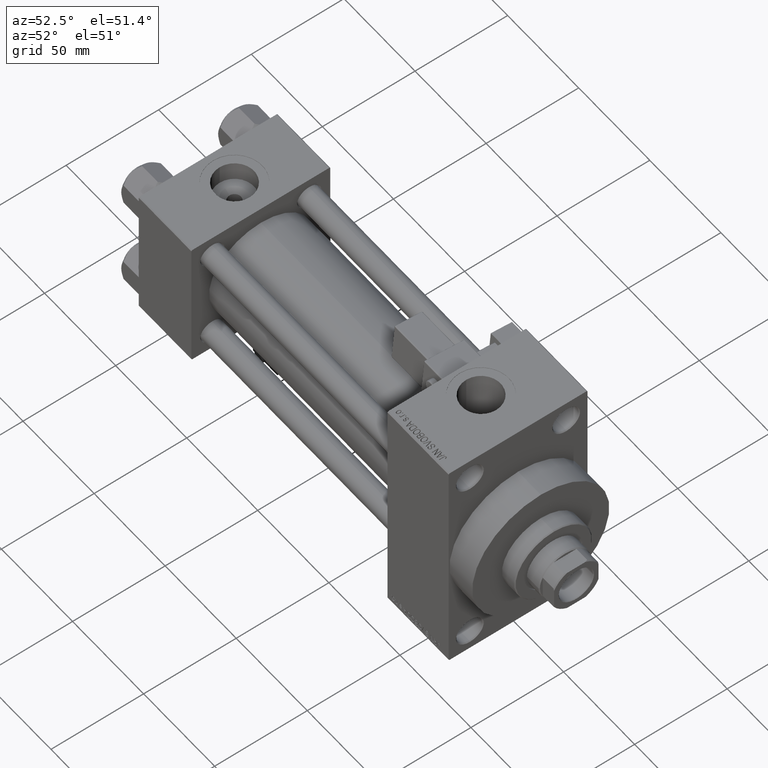
[diagram: clean part render]
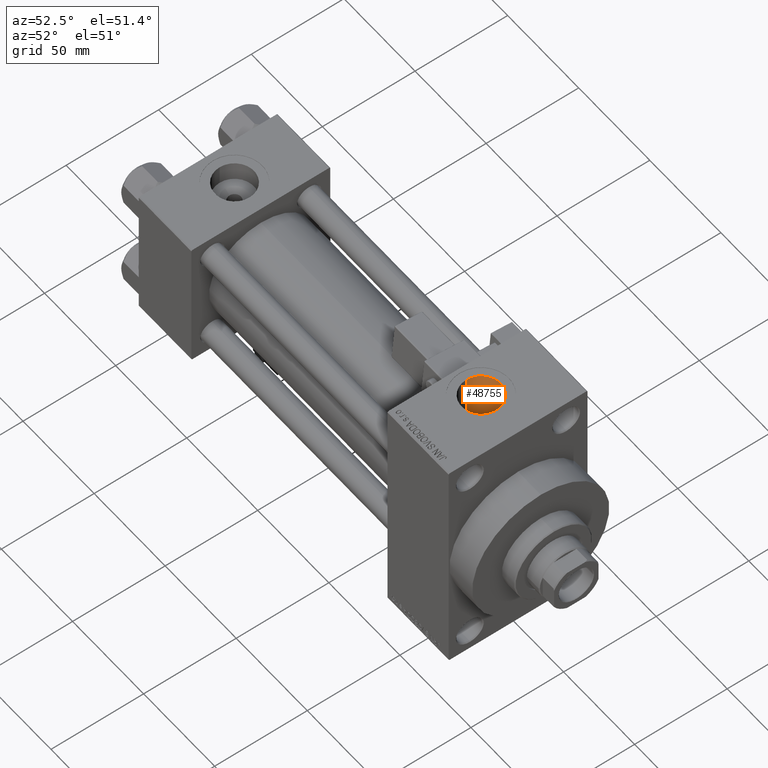
[diagram: same view with one face highlighted and labeled with its STEP entity id]
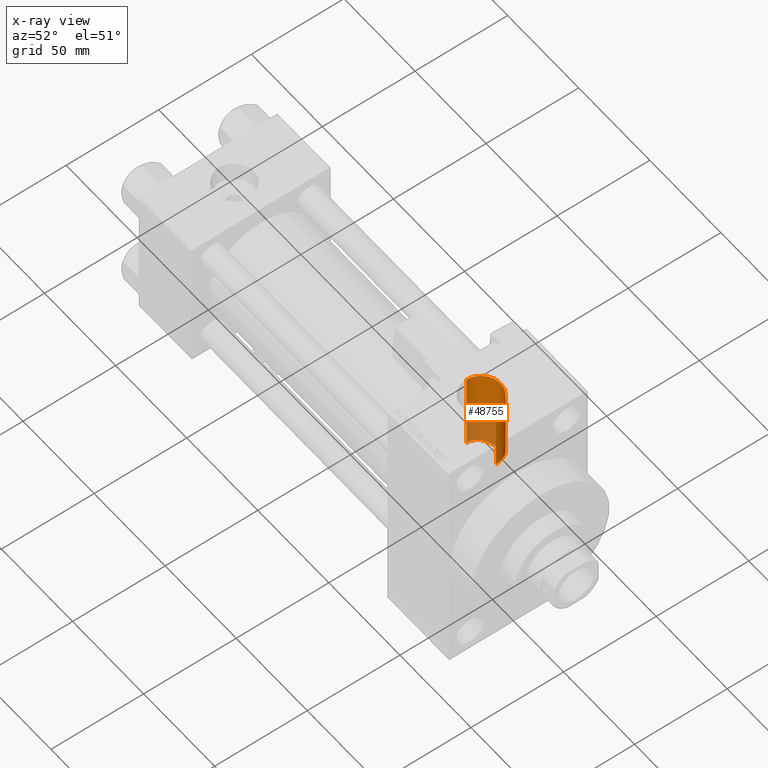
[diagram: x-ray of the same camera — body ghosted, the highlighted face saturated]
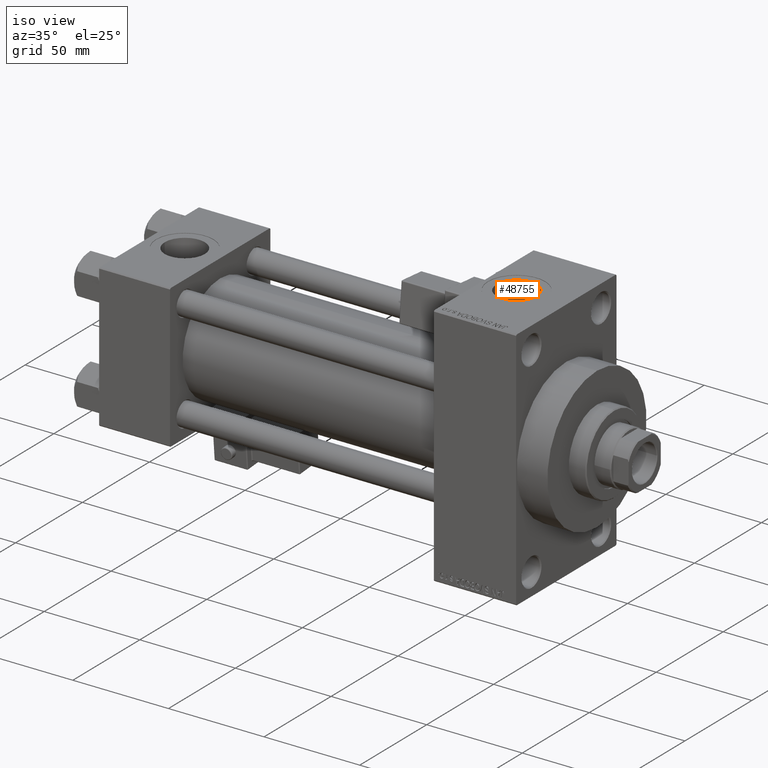
[diagram: same view with one face highlighted and labeled with its STEP entity id]
A machine part, auxiliary view. The second image highlights one B-rep face of the part: STEP entity #48755.
The next image is the same camera in x-ray: the body ghosted, the highlighted face saturated — about 27% of this face is hidden behind the body in this view.
A second angle (iso view) of the same face is appended — the face is thin or edge-on in the first view.
In plain terms, the highlighted cylindrical surface (edge-blend (fillet) strip) has radius 10.48 mm, axis along (0, 0, -1).
Its self-contained STEP definition (entity closure, byte-faithful):
#892 = CARTESIAN_POINT ( 'NONE',  ( 202.3797757294332200, 1.493268271475381104, 26.46049876817950164 ) ) ;
#1741 = CARTESIAN_POINT ( 'NONE',  ( 190.7400000000000375, 10.40398000767011943, 24.37226292324946542 ) ) ;
#1978 = VECTOR ( 'NONE', #6518, 1000.000000000000000 ) ;
#2234 = CARTESIAN_POINT ( 'NONE',  ( 191.4867779838282331, 10.49442042171645717, 24.33365591073747325 ) ) ;
#2297 = VERTEX_POINT ( 'NONE', #5023 ) ;
#2482 = CARTESIAN_POINT ( 'NONE',  ( 197.8214836787066702, 8.745726648652278001, 25.01826792439340963 ) ) ;
#2673 = B_SPLINE_CURVE_WITH_KNOTS ( 'NONE', 3,
 ( #48115, #25891, #40642, #22131, #41129, #37147, #37634, #10389, #10631, #18397, #18637, #3384, #33882, #48862, #44867, #14393, #6401, #14632, #21395, #48364, #40885, #22380, #41380, #14145, #2896, #29890 ),
 .UNSPECIFIED., .F., .F.,
 ( 4, 2, 2, 2, 2, 2, 2, 2, 2, 2, 2, 2, 4 ),
 ( 0.03336594956818868252, 0.03529115265112764410, 0.03721635573406661263, 0.03817895727553609342, 0.03914155881700557421, 0.04010416035847505500, 0.04106676189994454274, 0.04299196498288355983, 0.04395456652435306838, 0.04491716806582257693, 0.04684237114876160096, 0.04780497269023110951, 0.04876757423170062500 ),
 .UNSPECIFIED. ) ;
#2844 = CARTESIAN_POINT ( 'NONE',  ( 202.4799999999999898, -1.055894908382857656E-14, 63.79999999999996874 ) ) ;
#2896 = CARTESIAN_POINT ( 'NONE',  ( 190.4203714346558343, 10.36527059146238727, 17.68652548756301002 ) ) ;
#3333 = B_SPLINE_CURVE_WITH_KNOTS ( 'NONE', 3,
 ( #1741, #2234, #17238, #47705, #32739, #13984, #47956, #28988, #21490, #2482, #25493, #44469, #17740, #29242, #18978, #14971, #4644, #48949, #41219, #35148, #892, #16144, #26489, #49196 ),
 .UNSPECIFIED., .F., .F.,
 ( 4, 2, 2, 2, 2, 2, 2, 2, 2, 2, 2, 4 ),
 ( 0.000000000000000000, 0.002226462588988848811, 0.003339693883483232234, 0.004452925177977616090, 0.006679387766966461866, 0.008905850355955308509, 0.01113231294494415428, 0.01335877553393299833, 0.01447200682842742468, 0.01558523812292184930, 0.01669846941741627219, 0.01781170071191069335 ),
 .UNSPECIFIED. ) ;
#3384 = CARTESIAN_POINT ( 'NONE',  ( 183.7748447540610073, 6.501949221870913398, 19.44336272688398282 ) ) ;
#4644 = CARTESIAN_POINT ( 'NONE',  ( 201.8350634734961204, 3.638478613961682484, 26.25141056013275076 ) ) ;
#5023 = CARTESIAN_POINT ( 'NONE',  ( 190.7400000000000375, 10.40398000767011943, 24.37226292324946542 ) ) ;
#5787 = CARTESIAN_POINT ( 'NONE',  ( 202.4800000000001603, 1.369086091260426415E-14, 26.50000000000006750 ) ) ;
#6212 = EDGE_CURVE ( 'NONE', #2297, #9857, #12114, .T. ) ;
#6401 = CARTESIAN_POINT ( 'NONE',  ( 186.0406083823525307, 8.626389767625555649, 18.59760954222975471 ) ) ;
#6518 = DIRECTION ( 'NONE',  ( 0.000000000000000000, 0.000000000000000000, -1.000000000000000000 ) ) ;
#7703 = VERTEX_POINT ( 'NONE', #5787 ) ;
#8890 = ORIENTED_EDGE ( 'NONE', *, *, #27920, .T. ) ;
#9039 = VERTEX_POINT ( 'NONE', #9551 ) ;
#9551 = CARTESIAN_POINT ( 'NONE',  ( 181.5200000000000102, 2.510525899703770247E-15, 20.50000000000000000 ) ) ;
#9857 = VERTEX_POINT ( 'NONE', #32439 ) ;
#10264 = LINE ( 'NONE', #26519, #1978 ) ;
#10389 = CARTESIAN_POINT ( 'NONE',  ( 182.7465031261293120, 4.929846979882107405, 19.90053945554343784 ) ) ;
#10631 = CARTESIAN_POINT ( 'NONE',  ( 182.8986382944032130, 5.205176082402793725, 19.83010537438763521 ) ) ;
#12114 = LINE ( 'NONE', #47319, #24522 ) ;
#12397 = LINE ( 'NONE', #23900, #35970 ) ;
#12655 = DIRECTION ( 'NONE',  ( 0.000000000000000000, 0.000000000000000000, -1.000000000000000000 ) ) ;
#13093 = DIRECTION ( 'NONE',  ( 0.000000000000000000, 0.000000000000000000, -1.000000000000000000 ) ) ;
#13347 = DIRECTION ( 'NONE',  ( 1.000000000000000000, 0.000000000000000000, 0.000000000000000000 ) ) ;
#13984 = CARTESIAN_POINT ( 'NONE',  ( 194.4441749543285596, 10.19789382658398047, 24.45934298840090548 ) ) ;
#14145 = CARTESIAN_POINT ( 'NONE',  ( 190.0991158311732931, 10.31120164165119490, 17.71821964665047844 ) ) ;
#14393 = CARTESIAN_POINT ( 'NONE',  ( 185.7867860278861940, 8.445286684367406593, 18.68076181990202755 ) ) ;
#14632 = CARTESIAN_POINT ( 'NONE',  ( 186.5676313420410395, 8.967626198694221173, 18.43549189657610654 ) ) ;
#14971 = CARTESIAN_POINT ( 'NONE',  ( 201.6992295974814908, 3.986558870987725101, 26.20065640115692673 ) ) ;
#16144 = CARTESIAN_POINT ( 'NONE',  ( 202.4596852673074636, 0.7513843442591019439, 26.49194720587043506 ) ) ;
#17238 = CARTESIAN_POINT ( 'NONE',  ( 192.2299651273087875, 10.50378173186090969, 24.32953270370887822 ) ) ;
#17740 = CARTESIAN_POINT ( 'NONE',  ( 200.0047687462550812, 6.803400717438798928, 25.61891449644601337 ) ) ;
#18397 = CARTESIAN_POINT ( 'NONE',  ( 183.2259820339099292, 5.739795438484804890, 19.68201426512246499 ) ) ;
#18637 = CARTESIAN_POINT ( 'NONE',  ( 183.4011913467665522, 5.999084284177354398, 19.60435374003196074 ) ) ;
#18978 = CARTESIAN_POINT ( 'NONE',  ( 201.2405592406192341, 4.999168989607007951, 26.03318073817899858 ) ) ;
#18987 = EDGE_CURVE ( 'NONE', #44764, #7703, #12397, .T. ) ;
#20336 = DIRECTION ( 'NONE',  ( -1.000000000000000000, 0.000000000000000000, 0.000000000000000000 ) ) ;
#21395 = CARTESIAN_POINT ( 'NONE',  ( 186.8412927899011322, 9.127810295380935912, 18.35647067852580605 ) ) ;
#21483 = ORIENTED_EDGE ( 'NONE', *, *, #22408, .T. ) ;
#21490 = CARTESIAN_POINT ( 'NONE',  ( 196.5354866893690655, 9.476643251961657910, 24.75065044043747875 ) ) ;
#22031 = CIRCLE ( 'NONE', #34026, 10.47999999999998977 ) ;
#22131 = CARTESIAN_POINT ( 'NONE',  ( 181.8172526941615672, 2.560154069184299441, 20.34938652026760764 ) ) ;
#22380 = CARTESIAN_POINT ( 'NONE',  ( 189.1609584177873273, 10.09308949919718934, 17.84352421155691459 ) ) ;
#22408 = EDGE_CURVE ( 'NONE', #2297, #7703, #3333, .T. ) ;
#23900 = CARTESIAN_POINT ( 'NONE',  ( 202.4799999999999898, -1.055894908382857656E-14, 86.79999999999995453 ) ) ;
#23985 = EDGE_CURVE ( 'NONE', #9039, #9857, #2673, .T. ) ;
#24522 = VECTOR ( 'NONE', #13093, 1000.000000000000000 ) ;
#24975 = VERTEX_POINT ( 'NONE', #48871 ) ;
#25051 = EDGE_LOOP ( 'NONE', ( #37536, #43337, #8890, #44394, #40363, #21483 ) ) ;
#25493 = CARTESIAN_POINT ( 'NONE',  ( 198.4137155183433094, 8.320227012065158689, 25.16506772452922647 ) ) ;
#25891 = CARTESIAN_POINT ( 'NONE',  ( 181.5200000000000102, 0.6432653997690273018, 20.50000000000000355 ) ) ;
#26489 = CARTESIAN_POINT ( 'NONE',  ( 202.4800000000000182, 0.3734547879239682455, 26.50000000000001776 ) ) ;
#26519 = CARTESIAN_POINT ( 'NONE',  ( 181.5200000000000102, -1.184237892933500047E-14, 86.79999999999995453 ) ) ;
#27920 = EDGE_CURVE ( 'NONE', #24975, #9039, #10264, .T. ) ;
#28988 = CARTESIAN_POINT ( 'NONE',  ( 195.8597611319121654, 9.771269649766468390, 24.63391780956525778 ) ) ;
#29242 = CARTESIAN_POINT ( 'NONE',  ( 200.8701661937232359, 5.628741928601543876, 25.90236100434594135 ) ) ;
#29890 = CARTESIAN_POINT ( 'NONE',  ( 190.7400000000000375, 10.40398000767011943, 17.66372554134604300 ) ) ;
#30864 = FACE_OUTER_BOUND ( 'NONE', #25051, .T. ) ;
#31113 = DIRECTION ( 'NONE',  ( 0.000000000000000000, 0.000000000000000000, -1.000000000000000000 ) ) ;
#32346 = DIRECTION ( 'NONE',  ( -0.000000000000000000, -0.000000000000000000, -1.000000000000000000 ) ) ;
#32439 = CARTESIAN_POINT ( 'NONE',  ( 190.7400000000000375, 10.40398000767011943, 17.66372554134604300 ) ) ;
#32739 = CARTESIAN_POINT ( 'NONE',  ( 193.7090337631726413, 10.34650826617282959, 24.39684948145014332 ) ) ;
#33882 = CARTESIAN_POINT ( 'NONE',  ( 183.9742710306879019, 6.746563713616599678, 19.35963802281104762 ) ) ;
#34026 = AXIS2_PLACEMENT_3D ( 'NONE', #40086, #32346, #13347 ) ;
#35107 = CYLINDRICAL_SURFACE ( 'NONE', #44539, 10.47999999999998977 ) ;
#35148 = CARTESIAN_POINT ( 'NONE',  ( 202.3203974186214964, 1.859062739166797762, 26.43718984002442340 ) ) ;
#35970 = VECTOR ( 'NONE', #12655, 1000.000000000000000 ) ;
#37147 = CARTESIAN_POINT ( 'NONE',  ( 182.3367565711945701, 4.068703859687939683, 20.09447083081811058 ) ) ;
#37536 = ORIENTED_EDGE ( 'NONE', *, *, #18987, .F. ) ;
#37634 = CARTESIAN_POINT ( 'NONE',  ( 182.4658413712517984, 4.362386374640970566, 20.03258463067211537 ) ) ;
#40086 = CARTESIAN_POINT ( 'NONE',  ( 192.0000000000000000, -1.184237892933500047E-14, 63.79999999999996874 ) ) ;
#40363 = ORIENTED_EDGE ( 'NONE', *, *, #6212, .F. ) ;
#40642 = CARTESIAN_POINT ( 'NONE',  ( 181.5808659713658528, 1.297835754585093815, 20.46869666010346123 ) ) ;
#40885 = CARTESIAN_POINT ( 'NONE',  ( 188.2549261276042500, 9.808449044963696295, 18.00254357143011319 ) ) ;
#41129 = CARTESIAN_POINT ( 'NONE',  ( 181.9916734818970383, 3.173751558613254531, 20.26192827245123596 ) ) ;
#41219 = CARTESIAN_POINT ( 'NONE',  ( 202.1639830582153081, 2.580729652396736018, 26.37652280659619919 ) ) ;
#41380 = CARTESIAN_POINT ( 'NONE',  ( 189.4692022797542563, 10.17493502766898139, 17.79682229850194375 ) ) ;
#43337 = ORIENTED_EDGE ( 'NONE', *, *, #44677, .F. ) ;
#44394 = ORIENTED_EDGE ( 'NONE', *, *, #23985, .T. ) ;
#44469 = CARTESIAN_POINT ( 'NONE',  ( 199.5039792871088480, 7.352021432312223048, 25.46477158686610665 ) ) ;
#44539 = AXIS2_PLACEMENT_3D ( 'NONE', #46810, #31113, #20336 ) ;
#44677 = EDGE_CURVE ( 'NONE', #24975, #44764, #22031, .T. ) ;
#44764 = VERTEX_POINT ( 'NONE', #2844 ) ;
#44867 = CARTESIAN_POINT ( 'NONE',  ( 185.0528299167331738, 7.871036018965717140, 18.93334913321980295 ) ) ;
#46810 = CARTESIAN_POINT ( 'NONE',  ( 192.0000000000000000, -1.184237892933500047E-14, 86.79999999999995453 ) ) ;
#47319 = CARTESIAN_POINT ( 'NONE',  ( 190.7400000000000375, 10.40398000767011943, 86.79999999999995453 ) ) ;
#47705 = CARTESIAN_POINT ( 'NONE',  ( 193.3395490093498665, 10.40067243543116504, 24.37370326712204971 ) ) ;
#47956 = CARTESIAN_POINT ( 'NONE',  ( 194.8037318579564214, 10.10473920047651042, 24.49813564323964954 ) ) ;
#48115 = CARTESIAN_POINT ( 'NONE',  ( 181.5200000000000102, 2.510525899703770247E-15, 20.50000000000000000 ) ) ;
#48364 = CARTESIAN_POINT ( 'NONE',  ( 187.6756880578672622, 9.566914324853378560, 18.13372263328944101 ) ) ;
#48755 = ADVANCED_FACE ( 'NONE', ( #30864 ), #35107, .F. ) ;
#48862 = CARTESIAN_POINT ( 'NONE',  ( 184.5999354725381068, 7.447256858224739595, 19.10589413119057767 ) ) ;
#48871 = CARTESIAN_POINT ( 'NONE',  ( 181.5200000000000102, -1.184237892933500047E-14, 63.79999999999996874 ) ) ;
#48949 = CARTESIAN_POINT ( 'NONE',  ( 202.0669445693513353, 2.936601299046109226, 26.33916201839660332 ) ) ;
#49196 = CARTESIAN_POINT ( 'NONE',  ( 202.4800000000001603, 1.369086091260426415E-14, 26.50000000000006750 ) ) ;